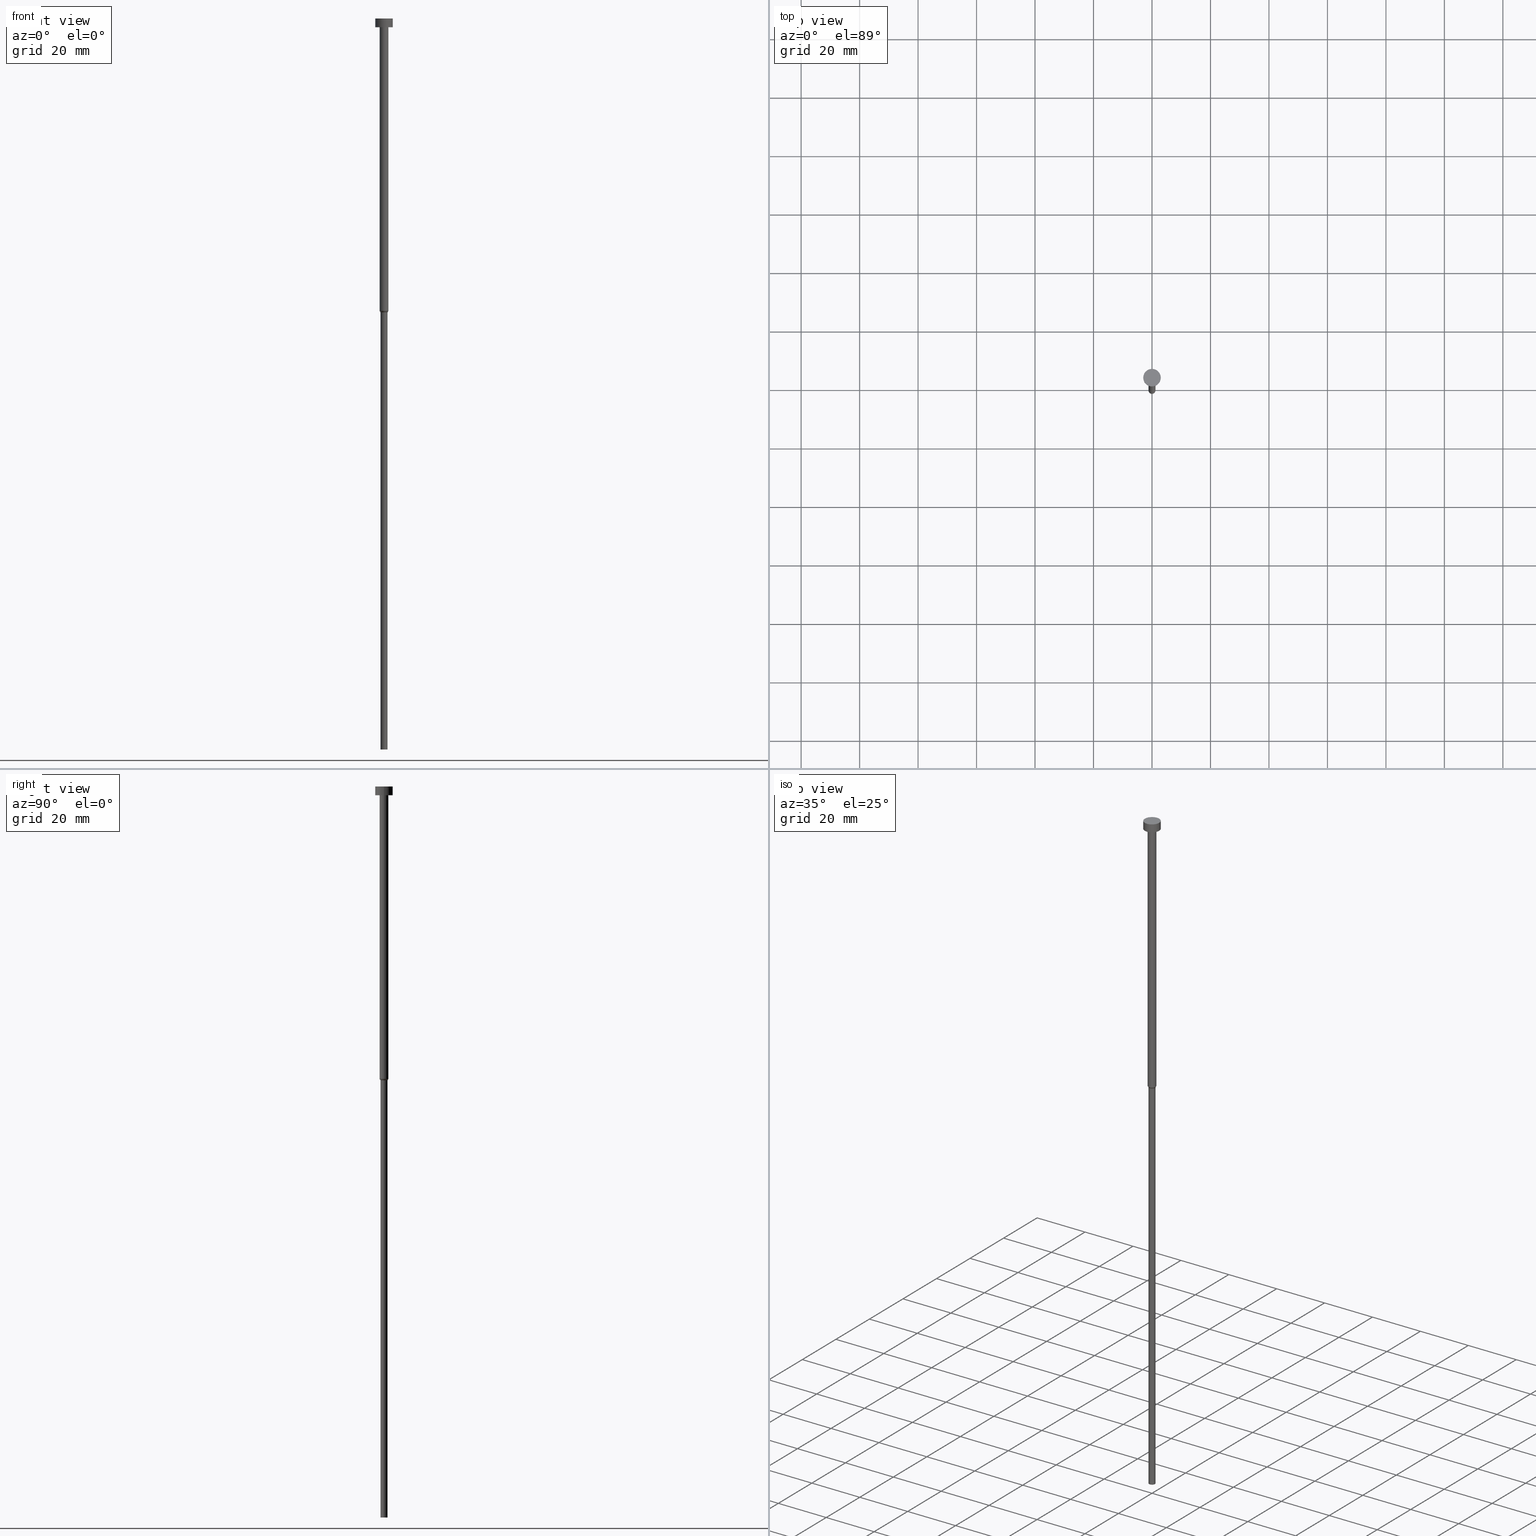
[diagram: canonical four-view strip — front | top / right | iso, engineering-drawing reading convention]
A machine part, canonical four-view strip (front | top / right | iso — engineering-drawing reading convention). The complete STEP part file that produces these views, byte-faithful:
ISO-10303-21;
HEADER;
FILE_DESCRIPTION (( 'STEP AP203' ),
    '1' );
FILE_NAME ('9b1b.STEP',
    '2023-02-13T09:00:20',
    ( '' ),
    ( '' ),
    'SwSTEP 2.0',
    'SolidWorks 2019',
    '' );
FILE_SCHEMA (( 'CONFIG_CONTROL_DESIGN' ));
ENDSEC;

DATA;
#1 = AXIS2_PLACEMENT_3D ( 'NONE', #33, #218, #273 ) ;
#2 = ORIENTED_EDGE ( 'NONE', *, *, #310, .F. ) ;
#3 = CARTESIAN_POINT ( 'NONE',  ( 0.000000000000000000, 0.000000000000000000, -3.000000000000000888 ) ) ;
#4 = LOCAL_TIME ( 10, 0, 20.00000000000000000, #25 ) ;
#5 = CARTESIAN_POINT ( 'NONE',  ( -3.000000000000000000, 3.673940397442059868E-16, -3.000000000000000888 ) ) ;
#6 = DIRECTION ( 'NONE',  ( 1.000000000000000000, 0.000000000000000000, 0.000000000000000000 ) ) ;
#7 = FACE_OUTER_BOUND ( 'NONE', #13, .T. ) ;
#8 = DIRECTION ( 'NONE',  ( 1.000000000000000000, 0.000000000000000000, 0.000000000000000000 ) ) ;
#9 = DIRECTION ( 'NONE',  ( -0.000000000000000000, -0.000000000000000000, 1.000000000000000000 ) ) ;
#10 = CC_DESIGN_DATE_AND_TIME_ASSIGNMENT ( #290, #348, ( #133 ) ) ;
#11 = VECTOR ( 'NONE', #80, 1000.000000000000000 ) ;
#12 = DIRECTION ( 'NONE',  ( -0.5000000000000104361, 6.123233995736894226E-17, 0.8660254037844326014 ) ) ;
#13 = EDGE_LOOP ( 'NONE', ( #239, #107, #160, #44 ) ) ;
#14 = AXIS2_PLACEMENT_3D ( 'NONE', #249, #298, #174 ) ;
#15 = CC_DESIGN_SECURITY_CLASSIFICATION ( #133, ( #47 ) ) ;
#16 = DIRECTION ( 'NONE',  ( 1.000000000000000000, 0.000000000000000000, 0.000000000000000000 ) ) ;
#17 = CARTESIAN_POINT ( 'NONE',  ( 0.000000000000000000, 0.000000000000000000, 0.000000000000000000 ) ) ;
#18 = ORIENTED_EDGE ( 'NONE', *, *, #98, .T. ) ;
#19 = CALENDAR_DATE ( 2023, 13, 2 ) ;
#20 = EDGE_CURVE ( 'NONE', #46, #51, #163, .T. ) ;
#21 = EDGE_LOOP ( 'NONE', ( #257, #254 ) ) ;
#22 = DIRECTION ( 'NONE',  ( -0.000000000000000000, -0.000000000000000000, 1.000000000000000000 ) ) ;
#23 = VERTEX_POINT ( 'NONE', #166 ) ;
#24 = VECTOR ( 'NONE', #12, 1000.000000000000000 ) ;
#25 = COORDINATED_UNIVERSAL_TIME_OFFSET ( 1, 0, .AHEAD. ) ;
#26 = DIRECTION ( 'NONE',  ( -0.000000000000000000, -0.000000000000000000, 1.000000000000000000 ) ) ;
#27 = CALENDAR_DATE ( 2023, 13, 2 ) ;
#28 = DIRECTION ( 'NONE',  ( 1.000000000000000000, 0.000000000000000000, 0.000000000000000000 ) ) ;
#29 = PRODUCT ( '9b1b', '9b1b', '', ( #225 ) ) ;
#30 = ORIENTED_EDGE ( 'NONE', *, *, #124, .F. ) ;
#31 = DESIGN_CONTEXT ( 'detailed design', #168, 'design' ) ;
#32 = DIRECTION ( 'NONE',  ( -0.000000000000000000, -0.000000000000000000, 1.000000000000000000 ) ) ;
#33 = CARTESIAN_POINT ( 'NONE',  ( 0.000000000000000000, 0.000000000000000000, 0.000000000000000000 ) ) ;
#34 = CIRCLE ( 'NONE', #224, 1.199999999999999956 ) ;
#35 = CYLINDRICAL_SURFACE ( 'NONE', #103, 3.000000000000000000 ) ;
#36 = CARTESIAN_POINT ( 'NONE',  ( -1.199999999999999956, 1.469576158976823553E-16, -250.0000000000000000 ) ) ;
#37 = CIRCLE ( 'NONE', #284, 3.000000000000000000 ) ;
#38 = CARTESIAN_POINT ( 'NONE',  ( 0.000000000000000000, 0.000000000000000000, -100.0000000000000000 ) ) ;
#39 = EDGE_CURVE ( 'NONE', #51, #95, #108, .T. ) ;
#40 = ORIENTED_EDGE ( 'NONE', *, *, #264, .T. ) ;
#41 = CARTESIAN_POINT ( 'NONE',  ( 0.000000000000000000, 0.000000000000000000, 0.000000000000000000 ) ) ;
#42 = ORIENTED_EDGE ( 'NONE', *, *, #263, .T. ) ;
#43 = DATE_AND_TIME ( #156, #276 ) ;
#44 = ORIENTED_EDGE ( 'NONE', *, *, #322, .F. ) ;
#45 =( LENGTH_UNIT ( ) NAMED_UNIT ( * ) SI_UNIT ( .MILLI., .METRE. ) );
#46 = VERTEX_POINT ( 'NONE', #318 ) ;
#47 = PRODUCT_DEFINITION_FORMATION_WITH_SPECIFIED_SOURCE ( 'LIBOVOLN�', '', #29, .NOT_KNOWN. ) ;
#48 = PERSON_AND_ORGANIZATION ( #144, #196 ) ;
#49 = ORIENTED_EDGE ( 'NONE', *, *, #116, .F. ) ;
#50 = CALENDAR_DATE ( 2023, 13, 2 ) ;
#51 = VERTEX_POINT ( 'NONE', #57 ) ;
#52 = COORDINATED_UNIVERSAL_TIME_OFFSET ( 1, 0, .AHEAD. ) ;
#53 = ORIENTED_EDGE ( 'NONE', *, *, #124, .T. ) ;
#54 = APPROVAL_DATE_TIME ( #321, #138 ) ;
#55 = AXIS2_PLACEMENT_3D ( 'NONE', #315, #9, #175 ) ;
#56 = CARTESIAN_POINT ( 'NONE',  ( 0.000000000000000000, 0.000000000000000000, -250.0000000000000000 ) ) ;
#57 = CARTESIAN_POINT ( 'NONE',  ( 1.500000000000000000, 0.000000000000000000, -3.000000000000000888 ) ) ;
#58 = PLANE ( 'NONE',  #252 ) ;
#59 = VECTOR ( 'NONE', #329, 1000.000000000000000 ) ;
#60 = CARTESIAN_POINT ( 'NONE',  ( 0.000000000000000000, 0.000000000000000000, -250.0000000000000000 ) ) ;
#61 = LINE ( 'NONE', #212, #326 ) ;
#62 = CARTESIAN_POINT ( 'NONE',  ( 1.199999999999999956, 0.000000000000000000, 0.000000000000000000 ) ) ;
#63 = FACE_OUTER_BOUND ( 'NONE', #83, .T. ) ;
#64 = EDGE_CURVE ( 'NONE', #308, #255, #114, .T. ) ;
#65 = DIRECTION ( 'NONE',  ( 1.000000000000000000, 0.000000000000000000, 0.000000000000000000 ) ) ;
#66 = ORIENTED_EDGE ( 'NONE', *, *, #98, .F. ) ;
#67 = AXIS2_PLACEMENT_3D ( 'NONE', #259, #22, #102 ) ;
#68 = ORIENTED_EDGE ( 'NONE', *, *, #317, .F. ) ;
#69 = LOCAL_TIME ( 10, 0, 20.00000000000000000, #351 ) ;
#70 = APPROVAL_STATUS ( 'not_yet_approved' ) ;
#71 = APPROVAL ( #324, 'NEUR�EN�' ) ;
#72 = CARTESIAN_POINT ( 'NONE',  ( 0.000000000000000000, 0.000000000000000000, -250.0000000000000000 ) ) ;
#73 = CIRCLE ( 'NONE', #110, 3.000000000000000000 ) ;
#74 = EDGE_CURVE ( 'NONE', #101, #291, #245, .T. ) ;
#75 = CALENDAR_DATE ( 2023, 13, 2 ) ;
#76 = APPROVAL ( #70, 'NEUR�EN�' ) ;
#77 = FACE_BOUND ( 'NONE', #135, .T. ) ;
#78 = ORIENTED_EDGE ( 'NONE', *, *, #118, .F. ) ;
#79 = SECURITY_CLASSIFICATION_LEVEL ( 'unclassified' ) ;
#80 = DIRECTION ( 'NONE',  ( -0.000000000000000000, -0.000000000000000000, 1.000000000000000000 ) ) ;
#81 = DATE_TIME_ROLE ( 'creation_date' ) ;
#82 = CC_DESIGN_APPROVAL ( #76, ( #142 ) ) ;
#83 = EDGE_LOOP ( 'NONE', ( #233, #251, #209, #68 ) ) ;
#84 = DIRECTION ( 'NONE',  ( -0.000000000000000000, -0.000000000000000000, 1.000000000000000000 ) ) ;
#85 = AXIS2_PLACEMENT_3D ( 'NONE', #248, #215, #296 ) ;
#86 = CYLINDRICAL_SURFACE ( 'NONE', #14, 1.199999999999999956 ) ;
#87 = APPROVAL_PERSON_ORGANIZATION ( #154, #76, #279 ) ;
#88 = CARTESIAN_POINT ( 'NONE',  ( 3.000000000000000000, 0.000000000000000000, -3.673940397442059868E-16 ) ) ;
#89 = CIRCLE ( 'NONE', #67, 1.199999999999999956 ) ;
#90 = CARTESIAN_POINT ( 'NONE',  ( 3.000000000000000000, 0.000000000000000000, -3.000000000000000888 ) ) ;
#91 = ADVANCED_FACE ( 'NONE', ( #77, #353 ), #131, .T. ) ;
#92 = CYLINDRICAL_SURFACE ( 'NONE', #269, 1.199999999999999956 ) ;
#93 = LOCAL_TIME ( 10, 0, 20.00000000000000000, #183 ) ;
#94 = FACE_OUTER_BOUND ( 'NONE', #182, .T. ) ;
#95 = VERTEX_POINT ( 'NONE', #185 ) ;
#96 = DIRECTION ( 'NONE',  ( 1.000000000000000000, 0.000000000000000000, 0.000000000000000000 ) ) ;
#97 = ORIENTED_EDGE ( 'NONE', *, *, #130, .F. ) ;
#98 = EDGE_CURVE ( 'NONE', #291, #101, #89, .T. ) ;
#99 = DIRECTION ( 'NONE',  ( -0.000000000000000000, -0.000000000000000000, 1.000000000000000000 ) ) ;
#100 = AXIS2_PLACEMENT_3D ( 'NONE', #17, #151, #253 ) ;
#101 = VERTEX_POINT ( 'NONE', #286 ) ;
#102 = DIRECTION ( 'NONE',  ( 1.000000000000000000, 0.000000000000000000, 0.000000000000000000 ) ) ;
#103 = AXIS2_PLACEMENT_3D ( 'NONE', #295, #84, #143 ) ;
#104 = APPROVAL_ROLE ( '' ) ;
#105 = ORIENTED_EDGE ( 'NONE', *, *, #64, .F. ) ;
#106 = DATE_AND_TIME ( #75, #352 ) ;
#107 = ORIENTED_EDGE ( 'NONE', *, *, #165, .T. ) ;
#108 = CIRCLE ( 'NONE', #335, 1.500000000000000000 ) ;
#109 = ORIENTED_EDGE ( 'NONE', *, *, #39, .T. ) ;
#110 = AXIS2_PLACEMENT_3D ( 'NONE', #193, #32, #219 ) ;
#111 = VECTOR ( 'NONE', #197, 1000.000000000000000 ) ;
#112 = CARTESIAN_POINT ( 'NONE',  ( 0.000000000000000000, 0.000000000000000000, -100.0000000000000000 ) ) ;
#113 = PLANE ( 'NONE',  #288 ) ;
#114 = CIRCLE ( 'NONE', #342, 1.199999999999999956 ) ;
#115 = CARTESIAN_POINT ( 'NONE',  ( 0.000000000000000000, 0.000000000000000000, -3.673940397442059868E-16 ) ) ;
#116 = EDGE_CURVE ( 'NONE', #95, #51, #164, .T. ) ;
#117 = DIRECTION ( 'NONE',  ( -1.000000000000000000, 0.000000000000000000, -0.000000000000000000 ) ) ;
#118 = EDGE_CURVE ( 'NONE', #316, #95, #327, .T. ) ;
#119 = DIRECTION ( 'NONE',  ( -0.000000000000000000, -0.000000000000000000, 1.000000000000000000 ) ) ;
#120 = DIRECTION ( 'NONE',  ( -0.000000000000000000, -0.000000000000000000, 1.000000000000000000 ) ) ;
#121 = DIRECTION ( 'NONE',  ( -0.000000000000000000, -0.000000000000000000, 1.000000000000000000 ) ) ;
#122 = CARTESIAN_POINT ( 'NONE',  ( -1.500000000000000000, 1.836970198721029934E-16, -100.0000000000000000 ) ) ;
#123 = ORIENTED_EDGE ( 'NONE', *, *, #74, .T. ) ;
#124 = EDGE_CURVE ( 'NONE', #255, #308, #34, .T. ) ;
#125 = ORIENTED_EDGE ( 'NONE', *, *, #150, .T. ) ;
#126 = APPROVAL_DATE_TIME ( #43, #76 ) ;
#127 = AXIS2_PLACEMENT_3D ( 'NONE', #145, #334, #195 ) ;
#128 = APPROVAL_ROLE ( '' ) ;
#129 = ORIENTED_EDGE ( 'NONE', *, *, #20, .F. ) ;
#130 = EDGE_CURVE ( 'NONE', #255, #101, #137, .T. ) ;
#131 = PLANE ( 'NONE',  #312 ) ;
#132 = AXIS2_PLACEMENT_3D ( 'NONE', #38, #121, #65 ) ;
#133 = SECURITY_CLASSIFICATION ( '', '', #79 ) ;
#134 = ADVANCED_FACE ( 'NONE', ( #7 ), #333, .T. ) ;
#135 = EDGE_LOOP ( 'NONE', ( #109, #139 ) ) ;
#136 = PERSON_AND_ORGANIZATION ( #144, #196 ) ;
#137 = LINE ( 'NONE', #330, #303 ) ;
#138 = APPROVAL ( #236, 'NEUR�EN�' ) ;
#139 = ORIENTED_EDGE ( 'NONE', *, *, #116, .T. ) ;
#140 = CARTESIAN_POINT ( 'NONE',  ( 0.000000000000000000, 0.000000000000000000, -1.836970198721029934E-16 ) ) ;
#141 = EDGE_CURVE ( 'NONE', #201, #186, #157, .T. ) ;
#142 = PRODUCT_DEFINITION ( 'NEZN�M�', '', #47, #31 ) ;
#143 = DIRECTION ( 'NONE',  ( 1.000000000000000000, 0.000000000000000000, 0.000000000000000000 ) ) ;
#144 = PERSON ( 'NEUR�EN�', 'NEUR�EN�', 'NEUR�EN�', ('NEUR�EN�'), ('NEUR�EN�'), ('NEUR�EN�') ) ;
#145 = CARTESIAN_POINT ( 'NONE',  ( 0.000000000000000000, 0.000000000000000000, 0.000000000000000000 ) ) ;
#146 = ADVANCED_FACE ( 'NONE', ( #147 ), #113, .T. ) ;
#147 = FACE_OUTER_BOUND ( 'NONE', #347, .T. ) ;
#148 = DIRECTION ( 'NONE',  ( 0.000000000000000000, 0.000000000000000000, -1.000000000000000000 ) ) ;
#149 = FACE_OUTER_BOUND ( 'NONE', #155, .T. ) ;
#150 = EDGE_CURVE ( 'NONE', #308, #291, #300, .T. ) ;
#151 = DIRECTION ( 'NONE',  ( 0.000000000000000000, 0.000000000000000000, 1.000000000000000000 ) ) ;
#152 = CIRCLE ( 'NONE', #205, 1.500000000000000000 ) ;
#153 = EDGE_LOOP ( 'NONE', ( #177, #311 ) ) ;
#154 = PERSON_AND_ORGANIZATION ( #144, #196 ) ;
#155 = EDGE_LOOP ( 'NONE', ( #18, #339, #281, #325 ) ) ;
#156 = CALENDAR_DATE ( 2023, 13, 2 ) ;
#157 = CIRCLE ( 'NONE', #85, 3.000000000000000000 ) ;
#158 = ORIENTED_EDGE ( 'NONE', *, *, #20, .T. ) ;
#159 = CARTESIAN_POINT ( 'NONE',  ( 3.000000000000000000, 0.000000000000000000, 0.000000000000000000 ) ) ;
#160 = ORIENTED_EDGE ( 'NONE', *, *, #317, .T. ) ;
#161 =( GEOMETRIC_REPRESENTATION_CONTEXT ( 3 ) GLOBAL_UNCERTAINTY_ASSIGNED_CONTEXT ( ( #292 ) ) GLOBAL_UNIT_ASSIGNED_CONTEXT ( ( #45, #309, #178 ) ) REPRESENTATION_CONTEXT ( 'NONE', 'WORKASPACE' ) );
#162 = EDGE_LOOP ( 'NONE', ( #179, #341, #266, #129 ) ) ;
#163 = LINE ( 'NONE', #204, #11 ) ;
#164 = CIRCLE ( 'NONE', #181, 1.500000000000000000 ) ;
#165 = EDGE_CURVE ( 'NONE', #186, #201, #73, .T. ) ;
#166 = CARTESIAN_POINT ( 'NONE',  ( -3.000000000000000000, 3.673940397442059868E-16, -3.673940397442059868E-16 ) ) ;
#167 = DIRECTION ( 'NONE',  ( -0.000000000000000000, -0.000000000000000000, 1.000000000000000000 ) ) ;
#168 = APPLICATION_CONTEXT ( 'configuration controlled 3d designs of mechanical parts and assemblies' ) ;
#169 = ORIENTED_EDGE ( 'NONE', *, *, #150, .F. ) ;
#170 = DIRECTION ( 'NONE',  ( -0.000000000000000000, -0.000000000000000000, 1.000000000000000000 ) ) ;
#171 = CC_DESIGN_APPROVAL ( #71, ( #47 ) ) ;
#172 = CARTESIAN_POINT ( 'NONE',  ( 1.500000000000000000, 0.000000000000000000, -100.0000000000000000 ) ) ;
#173 = FACE_OUTER_BOUND ( 'NONE', #162, .T. ) ;
#174 = DIRECTION ( 'NONE',  ( 1.000000000000000000, 0.000000000000000000, 0.000000000000000000 ) ) ;
#175 = DIRECTION ( 'NONE',  ( 1.000000000000000000, 0.000000000000000000, 0.000000000000000000 ) ) ;
#176 = DIRECTION ( 'NONE',  ( 1.000000000000000000, 0.000000000000000000, 0.000000000000000000 ) ) ;
#177 = ORIENTED_EDGE ( 'NONE', *, *, #302, .T. ) ;
#178 =( NAMED_UNIT ( * ) SI_UNIT ( $, .STERADIAN. ) SOLID_ANGLE_UNIT ( ) );
#179 = ORIENTED_EDGE ( 'NONE', *, *, #354, .T. ) ;
#180 = PERSON_AND_ORGANIZATION ( #144, #196 ) ;
#181 = AXIS2_PLACEMENT_3D ( 'NONE', #323, #26, #265 ) ;
#182 = EDGE_LOOP ( 'NONE', ( #2, #123, #40, #211 ) ) ;
#183 = COORDINATED_UNIVERSAL_TIME_OFFSET ( 1, 0, .AHEAD. ) ;
#184 = DIRECTION ( 'NONE',  ( 1.000000000000000000, 0.000000000000000000, 0.000000000000000000 ) ) ;
#185 = CARTESIAN_POINT ( 'NONE',  ( -1.500000000000000000, 1.836970198721029934E-16, -3.000000000000000888 ) ) ;
#186 = VERTEX_POINT ( 'NONE', #5 ) ;
#187 = VECTOR ( 'NONE', #237, 1000.000000000000000 ) ;
#188 = CARTESIAN_POINT ( 'NONE',  ( 0.000000000000000000, 0.000000000000000000, -100.5196152422706604 ) ) ;
#189 = ORIENTED_EDGE ( 'NONE', *, *, #130, .T. ) ;
#190 = CYLINDRICAL_SURFACE ( 'NONE', #127, 1.500000000000000000 ) ;
#191 = FACE_OUTER_BOUND ( 'NONE', #319, .T. ) ;
#192 = CC_DESIGN_APPROVAL ( #138, ( #133 ) ) ;
#193 = CARTESIAN_POINT ( 'NONE',  ( 0.000000000000000000, 0.000000000000000000, -3.000000000000000888 ) ) ;
#194 = CARTESIAN_POINT ( 'NONE',  ( 0.000000000000000000, 0.000000000000000000, 0.000000000000000000 ) ) ;
#195 = DIRECTION ( 'NONE',  ( 1.000000000000000000, 0.000000000000000000, 0.000000000000000000 ) ) ;
#196 = ORGANIZATION ( 'NEUR�EN�', 'NEUR�EN�', '' ) ;
#197 = DIRECTION ( 'NONE',  ( -0.000000000000000000, -0.000000000000000000, 1.000000000000000000 ) ) ;
#198 = APPLICATION_PROTOCOL_DEFINITION ( 'international standard', 'config_control_design', 1994, #244 ) ;
#199 = CARTESIAN_POINT ( 'NONE',  ( 1.199999999999999956, 0.000000000000000000, -250.0000000000000000 ) ) ;
#200 = COORDINATED_UNIVERSAL_TIME_OFFSET ( 1, 0, .AHEAD. ) ;
#201 = VERTEX_POINT ( 'NONE', #90 ) ;
#202 = DIRECTION ( 'NONE',  ( 1.000000000000000000, 0.000000000000000000, 0.000000000000000000 ) ) ;
#203 = PRODUCT_RELATED_PRODUCT_CATEGORY ( 'detail', '', ( #29 ) ) ;
#204 = CARTESIAN_POINT ( 'NONE',  ( 1.500000000000000000, 0.000000000000000000, 0.000000000000000000 ) ) ;
#205 = AXIS2_PLACEMENT_3D ( 'NONE', #112, #170, #8 ) ;
#206 = CC_DESIGN_PERSON_AND_ORGANIZATION_ASSIGNMENT ( #227, #261, ( #142 ) ) ;
#207 = VERTEX_POINT ( 'NONE', #88 ) ;
#208 = APPROVAL_DATE_TIME ( #106, #71 ) ;
#209 = ORIENTED_EDGE ( 'NONE', *, *, #302, .F. ) ;
#210 = PERSON_AND_ORGANIZATION_ROLE ( 'design_supplier' ) ;
#211 = ORIENTED_EDGE ( 'NONE', *, *, #263, .F. ) ;
#212 = CARTESIAN_POINT ( 'NONE',  ( -3.000000000000000000, 3.673940397442059868E-16, 0.000000000000000000 ) ) ;
#213 = CYLINDRICAL_SURFACE ( 'NONE', #268, 1.500000000000000000 ) ;
#214 = ADVANCED_FACE ( 'NONE', ( #242 ), #213, .T. ) ;
#215 = DIRECTION ( 'NONE',  ( -0.000000000000000000, -0.000000000000000000, 1.000000000000000000 ) ) ;
#216 = CIRCLE ( 'NONE', #55, 1.500000000000000000 ) ;
#217 = CC_DESIGN_DATE_AND_TIME_ASSIGNMENT ( #282, #81, ( #142 ) ) ;
#218 = DIRECTION ( 'NONE',  ( -0.000000000000000000, -0.000000000000000000, 1.000000000000000000 ) ) ;
#219 = DIRECTION ( 'NONE',  ( 1.000000000000000000, 0.000000000000000000, 0.000000000000000000 ) ) ;
#220 = CARTESIAN_POINT ( 'NONE',  ( -1.500000000000000000, 1.836970198721029934E-16, -100.0000000000000000 ) ) ;
#221 = CARTESIAN_POINT ( 'NONE',  ( 0.000000000000000000, 0.000000000000000000, -100.0000000000000000 ) ) ;
#222 = DIRECTION ( 'NONE',  ( -0.000000000000000000, -0.000000000000000000, 1.000000000000000000 ) ) ;
#223 = PRODUCT_DEFINITION_SHAPE ( 'NONE', 'NONE',  #142 ) ;
#224 = AXIS2_PLACEMENT_3D ( 'NONE', #56, #167, #28 ) ;
#225 = MECHANICAL_CONTEXT ( 'NONE', #244, 'mechanical' ) ;
#226 = ORIENTED_EDGE ( 'NONE', *, *, #74, .F. ) ;
#227 = PERSON_AND_ORGANIZATION ( #144, #196 ) ;
#228 = VECTOR ( 'NONE', #119, 1000.000000000000000 ) ;
#229 = CC_DESIGN_PERSON_AND_ORGANIZATION_ASSIGNMENT ( #349, #230, ( #47 ) ) ;
#230 = PERSON_AND_ORGANIZATION_ROLE ( 'creator' ) ;
#231 = ADVANCED_FACE ( 'NONE', ( #191 ), #86, .T. ) ;
#232 = PERSON_AND_ORGANIZATION_ROLE ( 'classification_officer' ) ;
#233 = ORIENTED_EDGE ( 'NONE', *, *, #141, .T. ) ;
#234 = PERSON_AND_ORGANIZATION ( #144, #196 ) ;
#235 = CARTESIAN_POINT ( 'NONE',  ( -1.500000000000000000, 1.836970198721029934E-16, 0.000000000000000000 ) ) ;
#236 = APPROVAL_STATUS ( 'not_yet_approved' ) ;
#237 = DIRECTION ( 'NONE',  ( -0.000000000000000000, -0.000000000000000000, 1.000000000000000000 ) ) ;
#238 = SHAPE_DEFINITION_REPRESENTATION ( #223, #297 ) ;
#239 = ORIENTED_EDGE ( 'NONE', *, *, #293, .F. ) ;
#240 = EDGE_LOOP ( 'NONE', ( #97, #53, #125, #226 ) ) ;
#241 = APPROVAL_PERSON_ORGANIZATION ( #48, #138, #104 ) ;
#242 = FACE_OUTER_BOUND ( 'NONE', #275, .T. ) ;
#243 = FACE_OUTER_BOUND ( 'NONE', #153, .T. ) ;
#244 = APPLICATION_CONTEXT ( 'configuration controlled 3d designs of mechanical parts and assemblies' ) ;
#245 = CIRCLE ( 'NONE', #250, 1.199999999999999956 ) ;
#246 = DIRECTION ( 'NONE',  ( -0.000000000000000000, -0.000000000000000000, 1.000000000000000000 ) ) ;
#247 = MANIFOLD_SOLID_BREP ( 'Rotovat1', #301 ) ;
#248 = CARTESIAN_POINT ( 'NONE',  ( 0.000000000000000000, 0.000000000000000000, -3.000000000000000888 ) ) ;
#249 = CARTESIAN_POINT ( 'NONE',  ( 0.000000000000000000, 0.000000000000000000, 0.000000000000000000 ) ) ;
#250 = AXIS2_PLACEMENT_3D ( 'NONE', #188, #350, #184 ) ;
#251 = ORIENTED_EDGE ( 'NONE', *, *, #293, .T. ) ;
#252 = AXIS2_PLACEMENT_3D ( 'NONE', #140, #270, #6 ) ;
#253 = DIRECTION ( 'NONE',  ( 1.000000000000000000, 0.000000000000000000, 0.000000000000000000 ) ) ;
#254 = ORIENTED_EDGE ( 'NONE', *, *, #165, .F. ) ;
#255 = VERTEX_POINT ( 'NONE', #36 ) ;
#256 = CONICAL_SURFACE ( 'NONE', #132, 1.500000000000000000, 0.5235987755983109171 ) ;
#257 = ORIENTED_EDGE ( 'NONE', *, *, #141, .F. ) ;
#258 = PERSON_AND_ORGANIZATION ( #144, #196 ) ;
#259 = CARTESIAN_POINT ( 'NONE',  ( 0.000000000000000000, 0.000000000000000000, -100.5196152422706604 ) ) ;
#260 = DIRECTION ( 'NONE',  ( -0.000000000000000000, -0.000000000000000000, 1.000000000000000000 ) ) ;
#261 = PERSON_AND_ORGANIZATION_ROLE ( 'creator' ) ;
#262 = DIRECTION ( 'NONE',  ( 1.000000000000000000, 0.000000000000000000, 0.000000000000000000 ) ) ;
#263 = EDGE_CURVE ( 'NONE', #316, #46, #152, .T. ) ;
#264 = EDGE_CURVE ( 'NONE', #291, #46, #267, .T. ) ;
#265 = DIRECTION ( 'NONE',  ( 1.000000000000000000, 0.000000000000000000, 0.000000000000000000 ) ) ;
#266 = ORIENTED_EDGE ( 'NONE', *, *, #39, .F. ) ;
#267 = LINE ( 'NONE', #172, #59 ) ;
#268 = AXIS2_PLACEMENT_3D ( 'NONE', #194, #274, #331 ) ;
#269 = AXIS2_PLACEMENT_3D ( 'NONE', #41, #99, #280 ) ;
#270 = DIRECTION ( 'NONE',  ( 0.000000000000000000, -0.000000000000000000, 1.000000000000000000 ) ) ;
#271 = CC_DESIGN_PERSON_AND_ORGANIZATION_ASSIGNMENT ( #180, #345, ( #29 ) ) ;
#272 = DIRECTION ( 'NONE',  ( -0.000000000000000000, -0.000000000000000000, 1.000000000000000000 ) ) ;
#273 = DIRECTION ( 'NONE',  ( 1.000000000000000000, 0.000000000000000000, 0.000000000000000000 ) ) ;
#274 = DIRECTION ( 'NONE',  ( -0.000000000000000000, -0.000000000000000000, 1.000000000000000000 ) ) ;
#275 = EDGE_LOOP ( 'NONE', ( #78, #42, #158, #49 ) ) ;
#276 = LOCAL_TIME ( 10, 0, 20.00000000000000000, #200 ) ;
#277 = LINE ( 'NONE', #122, #24 ) ;
#278 = ORIENTED_EDGE ( 'NONE', *, *, #64, .T. ) ;
#279 = APPROVAL_ROLE ( '' ) ;
#280 = DIRECTION ( 'NONE',  ( 1.000000000000000000, 0.000000000000000000, 0.000000000000000000 ) ) ;
#281 = ORIENTED_EDGE ( 'NONE', *, *, #354, .F. ) ;
#282 = DATE_AND_TIME ( #19, #4 ) ;
#283 = ADVANCED_FACE ( 'NONE', ( #173 ), #190, .T. ) ;
#284 = AXIS2_PLACEMENT_3D ( 'NONE', #346, #120, #16 ) ;
#285 = CARTESIAN_POINT ( 'NONE',  ( 0.000000000000000000, -3.000000000000000000, -3.000000000000000888 ) ) ;
#286 = CARTESIAN_POINT ( 'NONE',  ( -1.199999999999999956, 1.469576158976823553E-16, -100.5196152422706604 ) ) ;
#287 = DIRECTION ( 'NONE',  ( -0.000000000000000000, -0.000000000000000000, 1.000000000000000000 ) ) ;
#288 = AXIS2_PLACEMENT_3D ( 'NONE', #60, #148, #117 ) ;
#289 = DIRECTION ( 'NONE',  ( -1.000000000000000000, 0.000000000000000000, -0.000000000000000000 ) ) ;
#290 = DATE_AND_TIME ( #50, #69 ) ;
#291 = VERTEX_POINT ( 'NONE', #304 ) ;
#292 = UNCERTAINTY_MEASURE_WITH_UNIT (LENGTH_MEASURE( 1.000000000000000082E-05 ), #45, 'distance_accuracy_value', 'NONE');
#293 = EDGE_CURVE ( 'NONE', #186, #23, #61, .T. ) ;
#294 = ADVANCED_FACE ( 'NONE', ( #63 ), #35, .T. ) ;
#295 = CARTESIAN_POINT ( 'NONE',  ( 0.000000000000000000, 0.000000000000000000, 0.000000000000000000 ) ) ;
#296 = DIRECTION ( 'NONE',  ( 1.000000000000000000, 0.000000000000000000, 0.000000000000000000 ) ) ;
#297 = ADVANCED_BREP_SHAPE_REPRESENTATION ( '9b1b', ( #247, #100 ), #161 ) ;
#298 = DIRECTION ( 'NONE',  ( -0.000000000000000000, -0.000000000000000000, 1.000000000000000000 ) ) ;
#299 = ADVANCED_FACE ( 'NONE', ( #243 ), #58, .T. ) ;
#300 = LINE ( 'NONE', #62, #228 ) ;
#301 = CLOSED_SHELL ( 'NONE', ( #294, #283, #328, #231, #146, #320, #344, #214, #91, #134, #299 ) ) ;
#302 = EDGE_CURVE ( 'NONE', #207, #23, #305, .T. ) ;
#303 = VECTOR ( 'NONE', #246, 1000.000000000000000 ) ;
#304 = CARTESIAN_POINT ( 'NONE',  ( 1.199999999999999956, 0.000000000000000000, -100.5196152422706604 ) ) ;
#305 = CIRCLE ( 'NONE', #332, 3.000000000000000000 ) ;
#306 = CC_DESIGN_PERSON_AND_ORGANIZATION_ASSIGNMENT ( #258, #210, ( #47 ) ) ;
#307 = AXIS2_PLACEMENT_3D ( 'NONE', #221, #222, #176 ) ;
#308 = VERTEX_POINT ( 'NONE', #199 ) ;
#309 =( NAMED_UNIT ( * ) PLANE_ANGLE_UNIT ( ) SI_UNIT ( $, .RADIAN. ) );
#310 = EDGE_CURVE ( 'NONE', #101, #316, #277, .T. ) ;
#311 = ORIENTED_EDGE ( 'NONE', *, *, #322, .T. ) ;
#312 = AXIS2_PLACEMENT_3D ( 'NONE', #285, #355, #289 ) ;
#313 = FACE_OUTER_BOUND ( 'NONE', #240, .T. ) ;
#314 = CONICAL_SURFACE ( 'NONE', #307, 1.500000000000000000, 0.5235987755983109171 ) ;
#315 = CARTESIAN_POINT ( 'NONE',  ( 0.000000000000000000, 0.000000000000000000, -100.0000000000000000 ) ) ;
#316 = VERTEX_POINT ( 'NONE', #220 ) ;
#317 = EDGE_CURVE ( 'NONE', #201, #207, #336, .T. ) ;
#318 = CARTESIAN_POINT ( 'NONE',  ( 1.500000000000000000, 0.000000000000000000, -100.0000000000000000 ) ) ;
#319 = EDGE_LOOP ( 'NONE', ( #278, #189, #66, #169 ) ) ;
#320 = ADVANCED_FACE ( 'NONE', ( #313 ), #92, .T. ) ;
#321 = DATE_AND_TIME ( #27, #93 ) ;
#322 = EDGE_CURVE ( 'NONE', #23, #207, #37, .T. ) ;
#323 = CARTESIAN_POINT ( 'NONE',  ( 0.000000000000000000, 0.000000000000000000, -3.000000000000000888 ) ) ;
#324 = APPROVAL_STATUS ( 'not_yet_approved' ) ;
#325 = ORIENTED_EDGE ( 'NONE', *, *, #264, .F. ) ;
#326 = VECTOR ( 'NONE', #272, 1000.000000000000000 ) ;
#327 = LINE ( 'NONE', #235, #187 ) ;
#328 = ADVANCED_FACE ( 'NONE', ( #149 ), #314, .T. ) ;
#329 = DIRECTION ( 'NONE',  ( 0.5000000000000104361, 0.000000000000000000, 0.8660254037844326014 ) ) ;
#330 = CARTESIAN_POINT ( 'NONE',  ( -1.199999999999999956, 1.469576158976823553E-16, 0.000000000000000000 ) ) ;
#331 = DIRECTION ( 'NONE',  ( 1.000000000000000000, 0.000000000000000000, 0.000000000000000000 ) ) ;
#332 = AXIS2_PLACEMENT_3D ( 'NONE', #115, #338, #96 ) ;
#333 = CYLINDRICAL_SURFACE ( 'NONE', #1, 3.000000000000000000 ) ;
#334 = DIRECTION ( 'NONE',  ( -0.000000000000000000, -0.000000000000000000, 1.000000000000000000 ) ) ;
#335 = AXIS2_PLACEMENT_3D ( 'NONE', #3, #260, #202 ) ;
#336 = LINE ( 'NONE', #159, #111 ) ;
#337 = APPROVAL_PERSON_ORGANIZATION ( #234, #71, #128 ) ;
#338 = DIRECTION ( 'NONE',  ( -0.000000000000000000, -0.000000000000000000, 1.000000000000000000 ) ) ;
#339 = ORIENTED_EDGE ( 'NONE', *, *, #310, .T. ) ;
#340 = APPLICATION_PROTOCOL_DEFINITION ( 'international standard', 'config_control_design', 1994, #168 ) ;
#341 = ORIENTED_EDGE ( 'NONE', *, *, #118, .T. ) ;
#342 = AXIS2_PLACEMENT_3D ( 'NONE', #72, #287, #262 ) ;
#343 = CC_DESIGN_PERSON_AND_ORGANIZATION_ASSIGNMENT ( #136, #232, ( #133 ) ) ;
#344 = ADVANCED_FACE ( 'NONE', ( #94 ), #256, .T. ) ;
#345 = PERSON_AND_ORGANIZATION_ROLE ( 'design_owner' ) ;
#346 = CARTESIAN_POINT ( 'NONE',  ( 0.000000000000000000, 0.000000000000000000, -3.673940397442059868E-16 ) ) ;
#347 = EDGE_LOOP ( 'NONE', ( #105, #30 ) ) ;
#348 = DATE_TIME_ROLE ( 'classification_date' ) ;
#349 = PERSON_AND_ORGANIZATION ( #144, #196 ) ;
#350 = DIRECTION ( 'NONE',  ( -0.000000000000000000, -0.000000000000000000, 1.000000000000000000 ) ) ;
#351 = COORDINATED_UNIVERSAL_TIME_OFFSET ( 1, 0, .AHEAD. ) ;
#352 = LOCAL_TIME ( 10, 0, 20.00000000000000000, #52 ) ;
#353 = FACE_OUTER_BOUND ( 'NONE', #21, .T. ) ;
#354 = EDGE_CURVE ( 'NONE', #46, #316, #216, .T. ) ;
#355 = DIRECTION ( 'NONE',  ( 0.000000000000000000, 0.000000000000000000, -1.000000000000000000 ) ) ;
ENDSEC;
END-ISO-10303-21;
